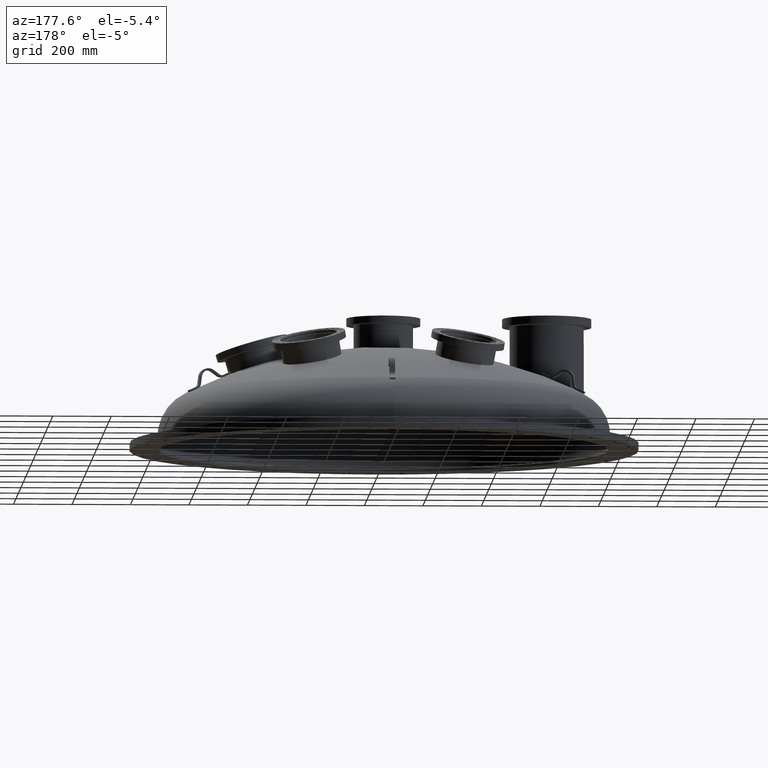
[diagram: clean part render]
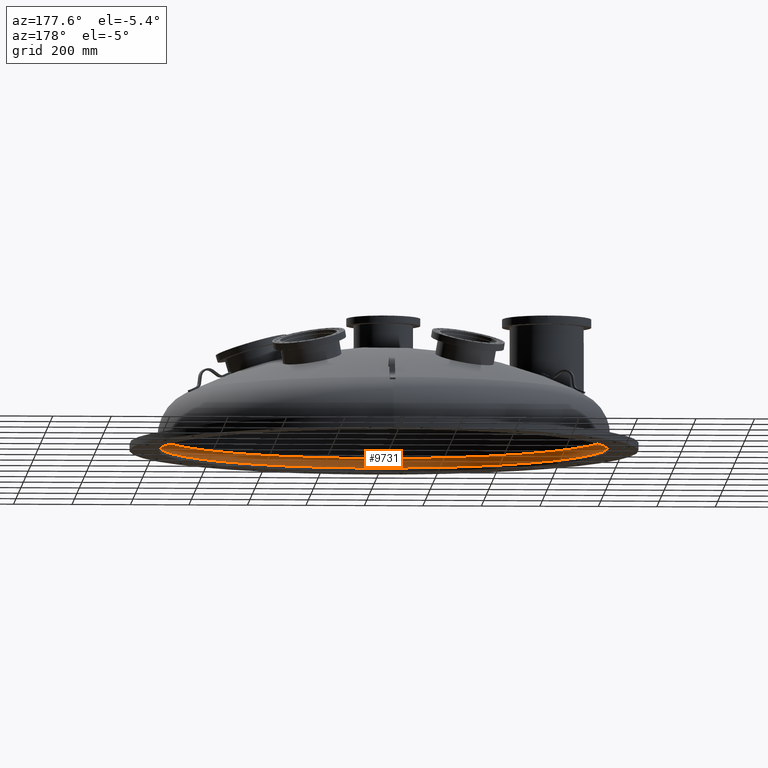
[diagram: same view with one face highlighted and labeled with its STEP entity id]
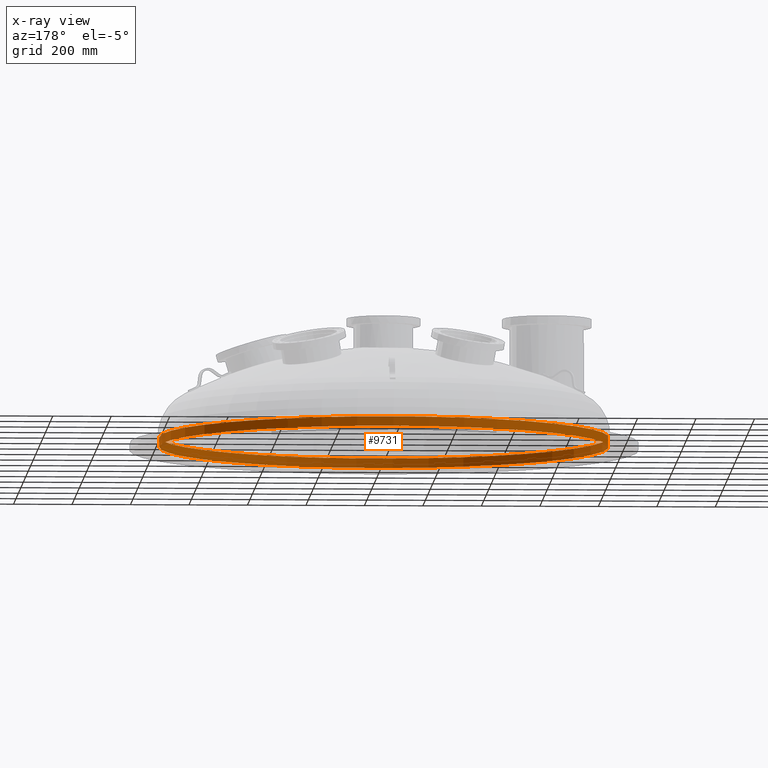
[diagram: x-ray of the same camera — body ghosted, the highlighted face saturated]
A machine part, auxiliary view. The second image highlights one B-rep face of the part: STEP entity #9731.
The next image is the same camera in x-ray: the body ghosted, the highlighted face saturated — about 1% of this face is hidden behind the body in this view.
In plain terms, the highlighted cylindrical surface (bore or boss wall) has radius 768.35 mm, axis along (-0, 0, -1).
Its self-contained STEP definition (entity closure, byte-faithful):
#1020 = AXIS2_PLACEMENT_3D ( 'NONE', #10635, #13146, #20734 ) ;
#1370 = EDGE_LOOP ( 'NONE', ( #20004 ) ) ;
#1757 = DIRECTION ( 'NONE',  ( -0.0000000000000000000, 3.675178358715239233E-15, -1.000000000000000000 ) ) ;
#1763 = AXIS2_PLACEMENT_3D ( 'NONE', #9114, #1757, #20206 ) ;
#3027 = CYLINDRICAL_SURFACE ( 'NONE', #1020, 30.25000000000000000 ) ;
#3751 = EDGE_CURVE ( 'NONE', #8560, #8560, #19028, .T. ) ;
#4113 = CIRCLE ( 'NONE', #1763, 30.24999999999999645 ) ;
#4476 = ORIENTED_EDGE ( 'NONE', *, *, #5964, .T. ) ;
#5658 = CARTESIAN_POINT ( 'NONE',  ( 0.0000000000000000000, 30.24999999999999645, 0.5000000000001381117 ) ) ;
#5964 = EDGE_CURVE ( 'NONE', #23145, #23145, #4113, .T. ) ;
#8560 = VERTEX_POINT ( 'NONE', #10541 ) ;
#8577 = DIRECTION ( 'NONE',  ( 0.0000000000000000000, 1.000000000000000000, 3.675577300566463024E-15 ) ) ;
#9114 = CARTESIAN_POINT ( 'NONE',  ( 0.0000000000000000000, -1.837589179357659060E-15, 0.5000000000000268674 ) ) ;
#9731 = ADVANCED_FACE ( 'NONE', ( #12513, #20113 ), #3027, .F. ) ;
#10541 = CARTESIAN_POINT ( 'NONE',  ( 0.0000000000000000000, 30.25000000000000000, 1.776659377206221135 ) ) ;
#10635 = CARTESIAN_POINT ( 'NONE',  ( 0.0000000000000000000, 0.0000000000000000000, 1.639108796198557852E-14 ) ) ;
#12513 = FACE_OUTER_BOUND ( 'NONE', #21758, .T. ) ;
#13146 = DIRECTION ( 'NONE',  ( -0.0000000000000000000, 3.675178358715239233E-15, -1.000000000000000000 ) ) ;
#15811 = DIRECTION ( 'NONE',  ( -0.0000000000000000000, 3.675178358715239233E-15, -1.000000000000000000 ) ) ;
#17436 = AXIS2_PLACEMENT_3D ( 'NONE', #21676, #15811, #8577 ) ;
#19028 = CIRCLE ( 'NONE', #17436, 30.25000000000000355 ) ;
#20004 = ORIENTED_EDGE ( 'NONE', *, *, #3751, .F. ) ;
#20113 = FACE_OUTER_BOUND ( 'NONE', #1370, .T. ) ;
#20206 = DIRECTION ( 'NONE',  ( 0.0000000000000000000, 1.000000000000000000, 3.675577300566463813E-15 ) ) ;
#20734 = DIRECTION ( 'NONE',  ( 0.0000000000000000000, 1.000000000000000000, 3.675178358715239233E-15 ) ) ;
#21676 = CARTESIAN_POINT ( 'NONE',  ( 0.0000000000000000000, -6.529540093916331497E-15, 1.776659377206109891 ) ) ;
#21758 = EDGE_LOOP ( 'NONE', ( #4476 ) ) ;
#23145 = VERTEX_POINT ( 'NONE', #5658 ) ;